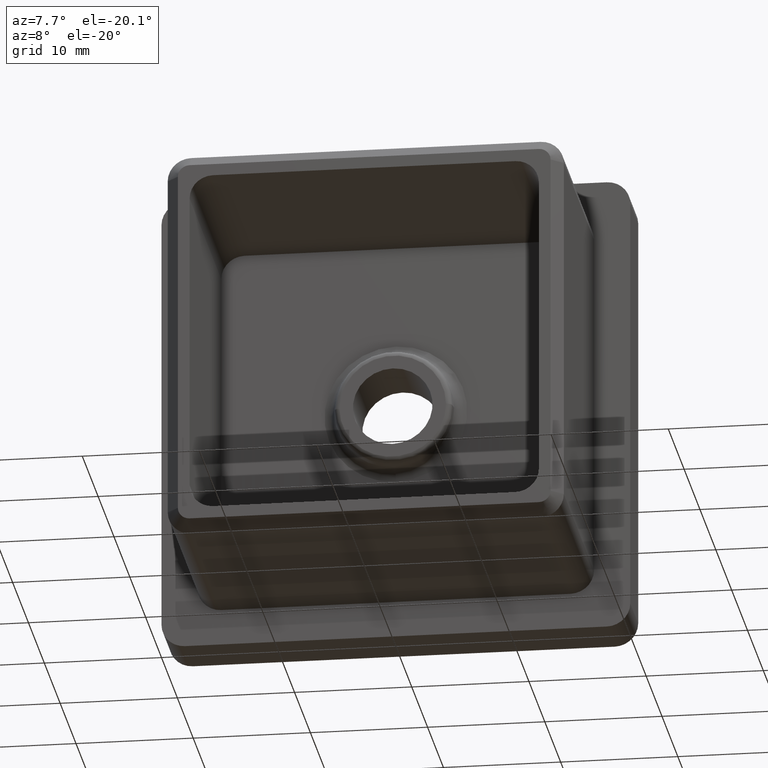
[diagram: clean part render]
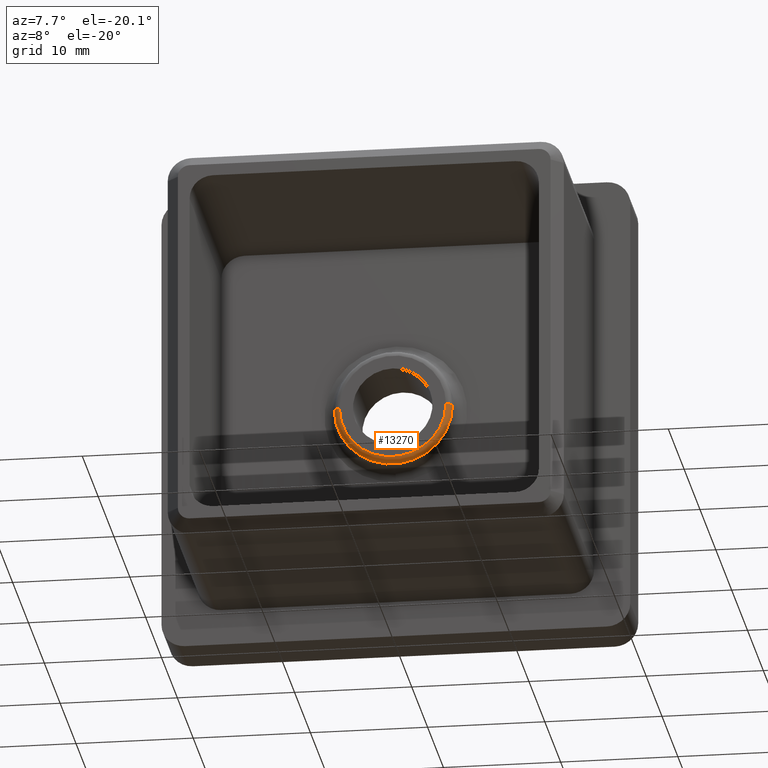
[diagram: same view with one face highlighted and labeled with its STEP entity id]
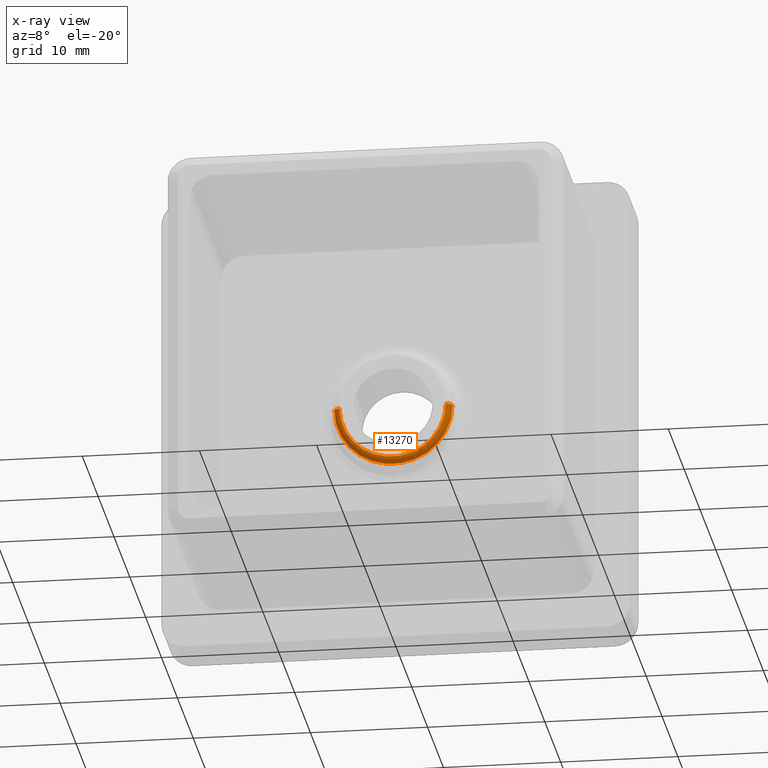
[diagram: x-ray of the same camera — body ghosted, the highlighted face saturated]
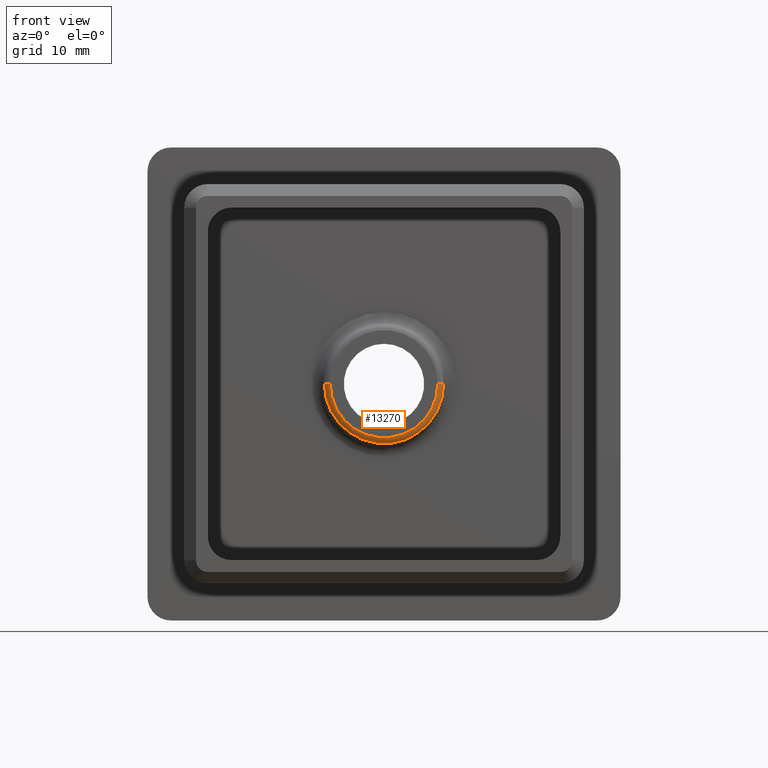
[diagram: same view with one face highlighted and labeled with its STEP entity id]
A machine part, auxiliary view. The second image highlights one B-rep face of the part: STEP entity #13270.
The next image is the same camera in x-ray: the body ghosted, the highlighted face saturated — about 0% of this face is hidden behind the body in this view.
A second angle (front view) of the same face is appended — the face is thin or edge-on in the first view.
In plain terms, the highlighted toroidal blend (fillet) surface has major radius 4.5418 mm and minor (blend) radius 0.5 mm.
Its self-contained STEP definition (entity closure, byte-faithful):
#681 = CARTESIAN_POINT ( 'NONE',  ( -4.541834412991284400, -2.000000000000000900, 0.0000000000000000000 ) ) ;
#744 = ORIENTED_EDGE ( 'NONE', *, *, #2390, .T. ) ;
#1206 = CARTESIAN_POINT ( 'NONE',  ( -4.541834412991284400, -1.500000000000001100, 0.0000000000000000000 ) ) ;
#1241 = CIRCLE ( 'NONE', #9972, 4.541834412991284400 ) ;
#1876 = ORIENTED_EDGE ( 'NONE', *, *, #7124, .F. ) ;
#2390 = EDGE_CURVE ( 'NONE', #7741, #12223, #16533, .T. ) ;
#3105 = AXIS2_PLACEMENT_3D ( 'NONE', #1206, #16772, #8322 ) ;
#3525 = CARTESIAN_POINT ( 'NONE',  ( 1.890337699412631400E-016, -1.543577871373824600, 0.0000000000000000000 ) ) ;
#4101 = CARTESIAN_POINT ( 'NONE',  ( -5.039931762037158000, -1.543577871373825300, 0.0000000000000000000 ) ) ;
#4401 = CARTESIAN_POINT ( 'NONE',  ( 4.541834412991284400, -1.499999999999999800, 5.562142976127074500E-016 ) ) ;
#4461 = DIRECTION ( 'NONE',  ( -1.224646799147353200E-016, -1.499759782661857900E-032, 1.000000000000000000 ) ) ;
#4690 = DIRECTION ( 'NONE',  ( -1.000000000000000000, -1.224646799147353500E-016, 0.0000000000000000000 ) ) ;
#4868 = DIRECTION ( 'NONE',  ( 1.000000000000000000, 1.290734347618150500E-016, 0.0000000000000000000 ) ) ;
#5227 = EDGE_CURVE ( 'NONE', #13229, #10434, #7890, .T. ) ;
#5990 = DIRECTION ( 'NONE',  ( -1.224646799147353500E-016, 1.000000000000000000, -0.0000000000000000000 ) ) ;
#6368 = EDGE_CURVE ( 'NONE', #7741, #13229, #1241, .T. ) ;
#7007 = TOROIDAL_SURFACE ( 'NONE', #10092, 4.541834412991284400, 0.5000000000000000000 ) ;
#7124 = EDGE_CURVE ( 'NONE', #10434, #12223, #10280, .T. ) ;
#7418 = CARTESIAN_POINT ( 'NONE',  ( 1.836970198721030400E-016, -1.500000000000000400, 0.0000000000000000000 ) ) ;
#7719 = DIRECTION ( 'NONE',  ( -1.224646799147353500E-016, 1.000000000000000000, -0.0000000000000000000 ) ) ;
#7741 = VERTEX_POINT ( 'NONE', #681 ) ;
#7890 = CIRCLE ( 'NONE', #14365, 0.4999999999999995600 ) ;
#8322 = DIRECTION ( 'NONE',  ( -1.000000000000000000, 0.0000000000000000000, 0.0000000000000000000 ) ) ;
#8617 = DIRECTION ( 'NONE',  ( 1.000000000000000000, 0.0000000000000000000, 1.224646799147353500E-016 ) ) ;
#9972 = AXIS2_PLACEMENT_3D ( 'NONE', #14432, #12877, #11335 ) ;
#10092 = AXIS2_PLACEMENT_3D ( 'NONE', #7418, #5990, #4690 ) ;
#10280 = CIRCLE ( 'NONE', #11234, 5.039931762037158000 ) ;
#10434 = VERTEX_POINT ( 'NONE', #11660 ) ;
#11234 = AXIS2_PLACEMENT_3D ( 'NONE', #3525, #7719, #4868 ) ;
#11335 = DIRECTION ( 'NONE',  ( -1.000000000000000000, -9.548583888345160900E-017, 0.0000000000000000000 ) ) ;
#11560 = CARTESIAN_POINT ( 'NONE',  ( 4.541834412991284400, -2.000000000000000000, 5.867139638213479300E-016 ) ) ;
#11660 = CARTESIAN_POINT ( 'NONE',  ( 5.039931762037158000, -1.543577871373824000, 6.205925555203900700E-016 ) ) ;
#12223 = VERTEX_POINT ( 'NONE', #4101 ) ;
#12877 = DIRECTION ( 'NONE',  ( 1.224646799147353500E-016, -1.000000000000000000, 0.0000000000000000000 ) ) ;
#12973 = FACE_OUTER_BOUND ( 'NONE', #17174, .T. ) ;
#13229 = VERTEX_POINT ( 'NONE', #11560 ) ;
#13270 = ADVANCED_FACE ( 'NONE', ( #12973 ), #7007, .T. ) ;
#14365 = AXIS2_PLACEMENT_3D ( 'NONE', #4401, #4461, #8617 ) ;
#14432 = CARTESIAN_POINT ( 'NONE',  ( 2.449293598294706900E-016, -2.000000000000000400, 0.0000000000000000000 ) ) ;
#16533 = CIRCLE ( 'NONE', #3105, 0.4999999999999995600 ) ;
#16772 = DIRECTION ( 'NONE',  ( 0.0000000000000000000, -0.0000000000000000000, -1.000000000000000000 ) ) ;
#17174 = EDGE_LOOP ( 'NONE', ( #17846, #18296, #744, #1876 ) ) ;
#17846 = ORIENTED_EDGE ( 'NONE', *, *, #5227, .F. ) ;
#18296 = ORIENTED_EDGE ( 'NONE', *, *, #6368, .F. ) ;